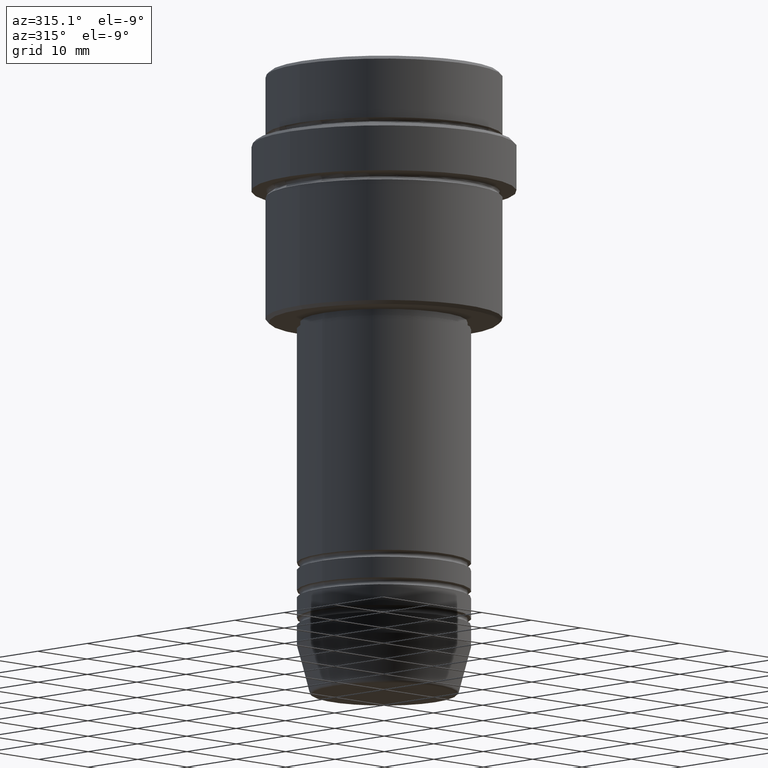
[diagram: clean part render]
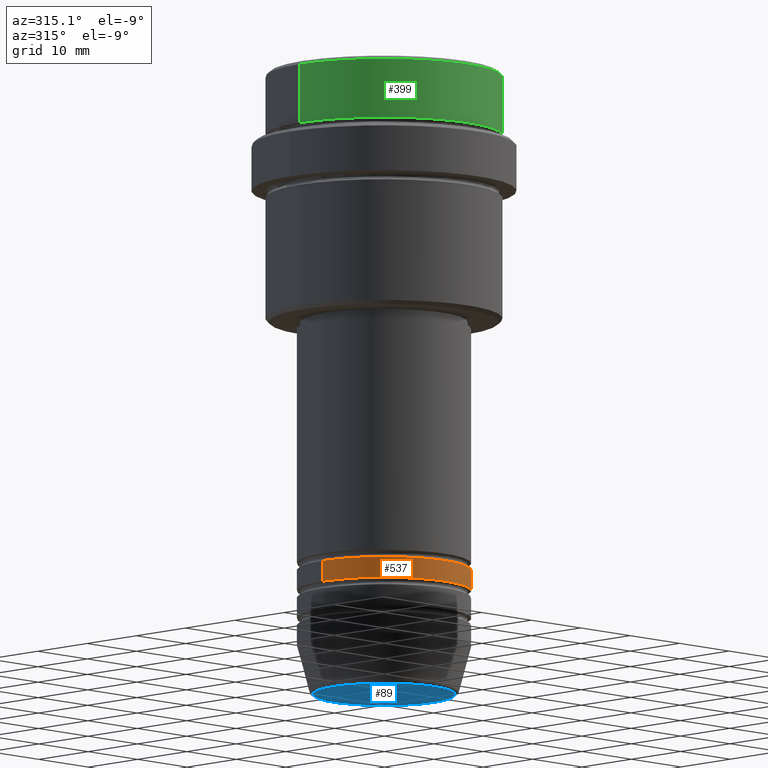
[diagram: same view with three faces highlighted in distinct colors, each labeled with its STEP entity id]
A machine part, auxiliary view with three faces highlighted in distinct colors.
Their STEP definitions:

[orange] entity #537 — the highlighted cylindrical surface (partial cylindrical patch) has radius 12.5 mm, axis along (-0, -0, 1).
#74 = CIRCLE ( 'NONE', #659, 12.50000000000000000 ) ;
#86 = ORIENTED_EDGE ( 'NONE', *, *, #247, .T. ) ;
#130 = CARTESIAN_POINT ( 'NONE',  ( 0.000000000000000000, 0.000000000000000000, -71.99999999999990052 ) ) ;
#174 = EDGE_CURVE ( 'NONE', #737, #692, #74, .T. ) ;
#192 = ORIENTED_EDGE ( 'NONE', *, *, #310, .F. ) ;
#224 = LINE ( 'NONE', #867, #1124 ) ;
#247 = EDGE_CURVE ( 'NONE', #955, #692, #224, .T. ) ;
#279 = AXIS2_PLACEMENT_3D ( 'NONE', #1294, #738, #996 ) ;
#310 = EDGE_CURVE ( 'NONE', #1268, #737, #1022, .T. ) ;
#324 = CIRCLE ( 'NONE', #784, 12.50000000000000000 ) ;
#423 = CARTESIAN_POINT ( 'NONE',  ( -12.50000000000000000, 1.530808498934191521E-15, -74.99999999999988631 ) ) ;
#442 = DIRECTION ( 'NONE',  ( 1.000000000000000000, 0.000000000000000000, 0.000000000000000000 ) ) ;
#537 = ADVANCED_FACE ( 'NONE', ( #1410 ), #864, .T. ) ;
#539 = DIRECTION ( 'NONE',  ( -0.000000000000000000, -0.000000000000000000, 1.000000000000000000 ) ) ;
#585 = CARTESIAN_POINT ( 'NONE',  ( 12.50000000000000000, 0.000000000000000000, -74.99999999999988631 ) ) ;
#655 = DIRECTION ( 'NONE',  ( -0.000000000000000000, -0.000000000000000000, 1.000000000000000000 ) ) ;
#659 = AXIS2_PLACEMENT_3D ( 'NONE', #130, #770, #1194 ) ;
#675 = EDGE_LOOP ( 'NONE', ( #192, #910, #86, #1176 ) ) ;
#692 = VERTEX_POINT ( 'NONE', #1411 ) ;
#737 = VERTEX_POINT ( 'NONE', #894 ) ;
#738 = DIRECTION ( 'NONE',  ( -0.000000000000000000, -0.000000000000000000, 1.000000000000000000 ) ) ;
#744 = VECTOR ( 'NONE', #808, 1000.000000000000000 ) ;
#759 = CARTESIAN_POINT ( 'NONE',  ( 0.000000000000000000, 0.000000000000000000, -74.99999999999988631 ) ) ;
#770 = DIRECTION ( 'NONE',  ( -0.000000000000000000, -0.000000000000000000, 1.000000000000000000 ) ) ;
#784 = AXIS2_PLACEMENT_3D ( 'NONE', #759, #539, #442 ) ;
#808 = DIRECTION ( 'NONE',  ( -0.000000000000000000, -0.000000000000000000, 1.000000000000000000 ) ) ;
#864 = CYLINDRICAL_SURFACE ( 'NONE', #279, 12.50000000000000000 ) ;
#867 = CARTESIAN_POINT ( 'NONE',  ( 12.50000000000000000, 0.000000000000000000, 0.000000000000000000 ) ) ;
#894 = CARTESIAN_POINT ( 'NONE',  ( -12.50000000000000000, 1.530808498934191521E-15, -71.99999999999990052 ) ) ;
#910 = ORIENTED_EDGE ( 'NONE', *, *, #1392, .T. ) ;
#955 = VERTEX_POINT ( 'NONE', #585 ) ;
#996 = DIRECTION ( 'NONE',  ( 1.000000000000000000, 0.000000000000000000, 0.000000000000000000 ) ) ;
#1022 = LINE ( 'NONE', #1361, #744 ) ;
#1124 = VECTOR ( 'NONE', #655, 1000.000000000000000 ) ;
#1176 = ORIENTED_EDGE ( 'NONE', *, *, #174, .F. ) ;
#1194 = DIRECTION ( 'NONE',  ( 1.000000000000000000, 0.000000000000000000, 0.000000000000000000 ) ) ;
#1268 = VERTEX_POINT ( 'NONE', #423 ) ;
#1294 = CARTESIAN_POINT ( 'NONE',  ( 0.000000000000000000, 0.000000000000000000, 0.000000000000000000 ) ) ;
#1361 = CARTESIAN_POINT ( 'NONE',  ( -12.50000000000000000, 1.530808498934191521E-15, 0.000000000000000000 ) ) ;
#1392 = EDGE_CURVE ( 'NONE', #1268, #955, #324, .T. ) ;
#1410 = FACE_OUTER_BOUND ( 'NONE', #675, .T. ) ;
#1411 = CARTESIAN_POINT ( 'NONE',  ( 12.50000000000000000, 0.000000000000000000, -71.99999999999990052 ) ) ;

[blue] entity #89 — the highlighted planar face has unit normal (0, -0, 1).
#64 = DIRECTION ( 'NONE',  ( 1.000000000000000000, 0.000000000000000000, 0.000000000000000000 ) ) ;
#89 = ADVANCED_FACE ( 'NONE', ( #938 ), #1362, .F. ) ;
#152 = CARTESIAN_POINT ( 'NONE',  ( 10.24069215899265828, 0.000000000000000000, -90.00000000000000000 ) ) ;
#167 = CIRCLE ( 'NONE', #499, 10.24069215899265828 ) ;
#182 = EDGE_CURVE ( 'NONE', #946, #267, #167, .T. ) ;
#200 = ORIENTED_EDGE ( 'NONE', *, *, #182, .T. ) ;
#203 = ORIENTED_EDGE ( 'NONE', *, *, #1198, .T. ) ;
#267 = VERTEX_POINT ( 'NONE', #361 ) ;
#361 = CARTESIAN_POINT ( 'NONE',  ( -10.24069215899265828, 1.283696036640842573E-15, -90.00000000000000000 ) ) ;
#403 = AXIS2_PLACEMENT_3D ( 'NONE', #735, #967, #1388 ) ;
#499 = AXIS2_PLACEMENT_3D ( 'NONE', #1087, #889, #1009 ) ;
#685 = CARTESIAN_POINT ( 'NONE',  ( 0.000000000000000000, 0.000000000000000000, -90.00000000000000000 ) ) ;
#735 = CARTESIAN_POINT ( 'NONE',  ( 0.000000000000000000, 0.000000000000000000, -90.00000000000000000 ) ) ;
#889 = DIRECTION ( 'NONE',  ( 0.000000000000000000, 0.000000000000000000, -1.000000000000000000 ) ) ;
#918 = DIRECTION ( 'NONE',  ( 0.000000000000000000, -0.000000000000000000, 1.000000000000000000 ) ) ;
#938 = FACE_OUTER_BOUND ( 'NONE', #1409, .T. ) ;
#946 = VERTEX_POINT ( 'NONE', #152 ) ;
#967 = DIRECTION ( 'NONE',  ( 0.000000000000000000, 0.000000000000000000, -1.000000000000000000 ) ) ;
#1009 = DIRECTION ( 'NONE',  ( 1.000000000000000000, 0.000000000000000000, 0.000000000000000000 ) ) ;
#1087 = CARTESIAN_POINT ( 'NONE',  ( 0.000000000000000000, 0.000000000000000000, -90.00000000000000000 ) ) ;
#1198 = EDGE_CURVE ( 'NONE', #267, #946, #1245, .T. ) ;
#1245 = CIRCLE ( 'NONE', #403, 10.24069215899265828 ) ;
#1279 = AXIS2_PLACEMENT_3D ( 'NONE', #685, #918, #64 ) ;
#1362 = PLANE ( 'NONE',  #1279 ) ;
#1388 = DIRECTION ( 'NONE',  ( 1.000000000000000000, 0.000000000000000000, 0.000000000000000000 ) ) ;
#1409 = EDGE_LOOP ( 'NONE', ( #200, #203 ) ) ;

[green] entity #399 — the highlighted cylindrical surface (partial cylindrical patch) has radius 17 mm, axis along (-0, -0, 1).
#54 = VECTOR ( 'NONE', #570, 1000.000000000000000 ) ;
#70 = ORIENTED_EDGE ( 'NONE', *, *, #1032, .T. ) ;
#72 = DIRECTION ( 'NONE',  ( -0.000000000000000000, -0.000000000000000000, 1.000000000000000000 ) ) ;
#81 = LINE ( 'NONE', #88, #1225 ) ;
#88 = CARTESIAN_POINT ( 'NONE',  ( 17.00000000000000000, 0.000000000000000000, 0.000000000000000000 ) ) ;
#117 = CARTESIAN_POINT ( 'NONE',  ( 17.00000000000000000, 0.000000000000000000, -0.5000000000000073275 ) ) ;
#138 = EDGE_CURVE ( 'NONE', #1189, #1069, #175, .T. ) ;
#147 = CARTESIAN_POINT ( 'NONE',  ( -17.00000000000000000, 2.081899558550500280E-15, -0.5000000000000073275 ) ) ;
#158 = CARTESIAN_POINT ( 'NONE',  ( 0.000000000000000000, 0.000000000000000000, 0.000000000000000000 ) ) ;
#171 = DIRECTION ( 'NONE',  ( 0.000000000000000000, 0.000000000000000000, -1.000000000000000000 ) ) ;
#175 = LINE ( 'NONE', #861, #54 ) ;
#179 = ORIENTED_EDGE ( 'NONE', *, *, #1212, .T. ) ;
#226 = VERTEX_POINT ( 'NONE', #981 ) ;
#244 = CIRCLE ( 'NONE', #878, 17.00000000000000000 ) ;
#314 = DIRECTION ( 'NONE',  ( 1.000000000000000000, 0.000000000000000000, 0.000000000000000000 ) ) ;
#369 = DIRECTION ( 'NONE',  ( -0.000000000000000000, -0.000000000000000000, 1.000000000000000000 ) ) ;
#399 = ADVANCED_FACE ( 'NONE', ( #689 ), #1136, .T. ) ;
#414 = CARTESIAN_POINT ( 'NONE',  ( -17.00000000000000000, 2.081899558550500280E-15, -9.000000000000001776 ) ) ;
#502 = ORIENTED_EDGE ( 'NONE', *, *, #1233, .T. ) ;
#522 = CIRCLE ( 'NONE', #553, 17.00000000000000000 ) ;
#553 = AXIS2_PLACEMENT_3D ( 'NONE', #701, #171, #1019 ) ;
#570 = DIRECTION ( 'NONE',  ( -0.000000000000000000, -0.000000000000000000, 1.000000000000000000 ) ) ;
#590 = DIRECTION ( 'NONE',  ( 1.000000000000000000, 0.000000000000000000, 0.000000000000000000 ) ) ;
#625 = VERTEX_POINT ( 'NONE', #117 ) ;
#689 = FACE_OUTER_BOUND ( 'NONE', #992, .T. ) ;
#701 = CARTESIAN_POINT ( 'NONE',  ( 0.000000000000000000, 0.000000000000000000, -0.5000000000000073275 ) ) ;
#746 = AXIS2_PLACEMENT_3D ( 'NONE', #158, #369, #590 ) ;
#853 = CARTESIAN_POINT ( 'NONE',  ( 0.000000000000000000, 0.000000000000000000, -9.000000000000001776 ) ) ;
#861 = CARTESIAN_POINT ( 'NONE',  ( -17.00000000000000000, 2.081899558550500280E-15, 0.000000000000000000 ) ) ;
#878 = AXIS2_PLACEMENT_3D ( 'NONE', #853, #1289, #314 ) ;
#981 = CARTESIAN_POINT ( 'NONE',  ( 17.00000000000000000, 0.000000000000000000, -9.000000000000001776 ) ) ;
#992 = EDGE_LOOP ( 'NONE', ( #1205, #179, #502, #70 ) ) ;
#1019 = DIRECTION ( 'NONE',  ( 1.000000000000000000, 0.000000000000000000, 0.000000000000000000 ) ) ;
#1032 = EDGE_CURVE ( 'NONE', #625, #1069, #522, .T. ) ;
#1069 = VERTEX_POINT ( 'NONE', #147 ) ;
#1136 = CYLINDRICAL_SURFACE ( 'NONE', #746, 17.00000000000000000 ) ;
#1189 = VERTEX_POINT ( 'NONE', #414 ) ;
#1205 = ORIENTED_EDGE ( 'NONE', *, *, #138, .F. ) ;
#1212 = EDGE_CURVE ( 'NONE', #1189, #226, #244, .T. ) ;
#1225 = VECTOR ( 'NONE', #72, 1000.000000000000000 ) ;
#1233 = EDGE_CURVE ( 'NONE', #226, #625, #81, .T. ) ;
#1289 = DIRECTION ( 'NONE',  ( -0.000000000000000000, -0.000000000000000000, 1.000000000000000000 ) ) ;